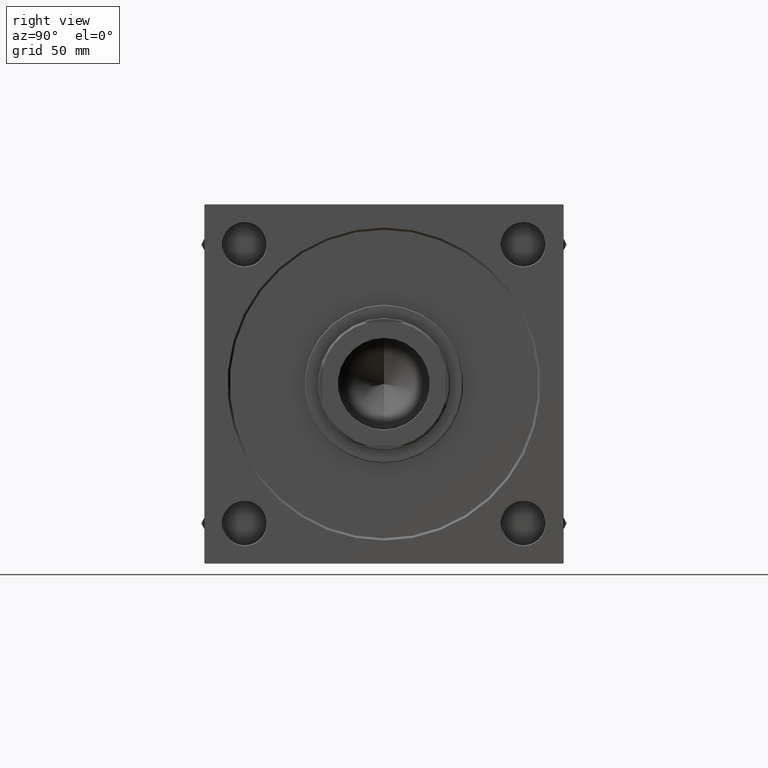
[diagram: clean part render]
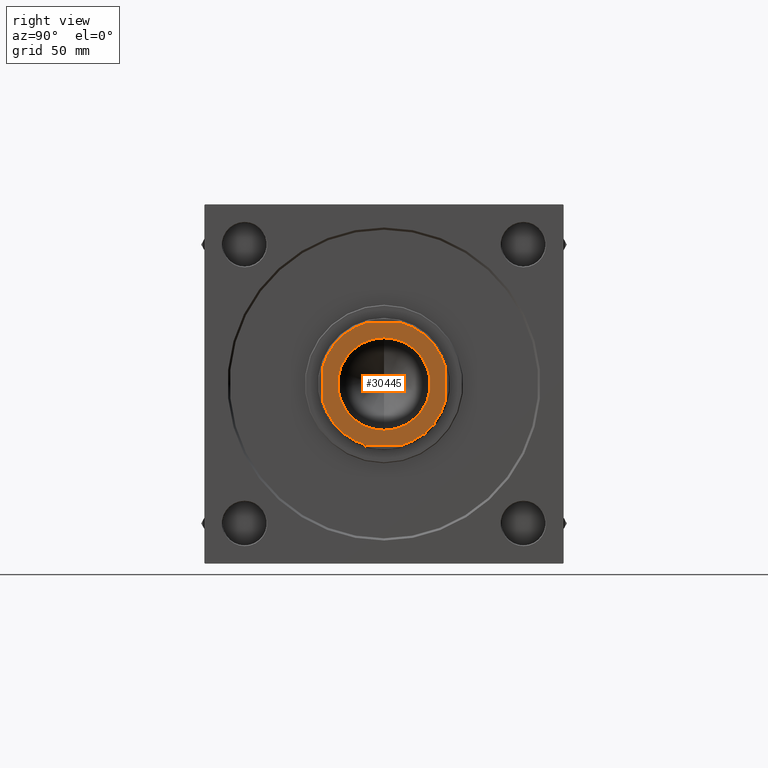
[diagram: same view with one face highlighted and labeled with its STEP entity id]
A machine part, right view. The second image highlights one B-rep face of the part: STEP entity #30445.
In plain terms, the highlighted planar face has unit normal (1, 0, -0).
Its self-contained STEP definition (entity closure, byte-faithful):
#225 = ORIENTED_EDGE ( 'NONE', *, *, #26406, .T. ) ;
#249 = VERTEX_POINT ( 'NONE', #32854 ) ;
#677 = VERTEX_POINT ( 'NONE', #10217 ) ;
#704 = EDGE_CURVE ( 'NONE', #29728, #37407, #50331, .T. ) ;
#1544 = EDGE_LOOP ( 'NONE', ( #225, #20973 ) ) ;
#1638 = CARTESIAN_POINT ( 'NONE',  ( 11.32475165290652974, -42.00000000000000000, 245.0000000000000000 ) ) ;
#1953 = CARTESIAN_POINT ( 'NONE',  ( -11.32475165290625085, -42.00000000000001421, 245.0000000000000000 ) ) ;
#2362 = ORIENTED_EDGE ( 'NONE', *, *, #31434, .T. ) ;
#2437 = ORIENTED_EDGE ( 'NONE', *, *, #19683, .T. ) ;
#2545 = VERTEX_POINT ( 'NONE', #1953 ) ;
#3132 = ORIENTED_EDGE ( 'NONE', *, *, #704, .T. ) ;
#3201 = CARTESIAN_POINT ( 'NONE',  ( 0.000000000000000000, 0.000000000000000000, 245.0000000000000000 ) ) ;
#3217 = DIRECTION ( 'NONE',  ( 1.000000000000000000, 0.000000000000000000, 0.000000000000000000 ) ) ;
#3274 = CARTESIAN_POINT ( 'NONE',  ( -42.00000000000001421, 41.99999999999997868, 245.0000000000000000 ) ) ;
#3547 = DIRECTION ( 'NONE',  ( -0.000000000000000000, 0.000000000000000000, 1.000000000000000000 ) ) ;
#3633 = VECTOR ( 'NONE', #11695, 1000.000000000000000 ) ;
#6940 = DIRECTION ( 'NONE',  ( 1.000000000000000000, 0.000000000000000000, 0.000000000000000000 ) ) ;
#7926 = LINE ( 'NONE', #24071, #26649 ) ;
#8350 = FACE_BOUND ( 'NONE', #1544, .T. ) ;
#8512 = CARTESIAN_POINT ( 'NONE',  ( -42.00000000000000000, -42.00000000000001421, 245.0000000000000000 ) ) ;
#9089 = DIRECTION ( 'NONE',  ( -0.000000000000000000, 0.000000000000000000, 1.000000000000000000 ) ) ;
#10217 = CARTESIAN_POINT ( 'NONE',  ( -42.00000000000000711, 11.32475165290618158, 245.0000000000000000 ) ) ;
#11076 = DIRECTION ( 'NONE',  ( -0.000000000000000000, 0.000000000000000000, 1.000000000000000000 ) ) ;
#11401 = VECTOR ( 'NONE', #23765, 1000.000000000000000 ) ;
#11520 = DIRECTION ( 'NONE',  ( -2.478176394252582127E-16, 1.000000000000000000, -0.000000000000000000 ) ) ;
#11695 = DIRECTION ( 'NONE',  ( -1.000000000000000000, -0.000000000000000000, -0.000000000000000000 ) ) ;
#12158 = CIRCLE ( 'NONE', #35913, 31.55000000000002203 ) ;
#12402 = VERTEX_POINT ( 'NONE', #1638 ) ;
#12404 = CARTESIAN_POINT ( 'NONE',  ( 11.32475165290663277, 41.99999999999997868, 245.0000000000000000 ) ) ;
#13398 = AXIS2_PLACEMENT_3D ( 'NONE', #44223, #9089, #13716 ) ;
#13716 = DIRECTION ( 'NONE',  ( 1.000000000000000000, 0.000000000000000000, 0.000000000000000000 ) ) ;
#18413 = CARTESIAN_POINT ( 'NONE',  ( 31.55000000000002203, 0.000000000000000000, 245.0000000000000000 ) ) ;
#18840 = DIRECTION ( 'NONE',  ( -0.000000000000000000, 0.000000000000000000, 1.000000000000000000 ) ) ;
#19097 = CARTESIAN_POINT ( 'NONE',  ( 0.000000000000000000, 0.000000000000000000, 245.0000000000000000 ) ) ;
#19445 = DIRECTION ( 'NONE',  ( 1.000000000000000000, 0.000000000000000000, 0.000000000000000000 ) ) ;
#19683 = EDGE_CURVE ( 'NONE', #43974, #2545, #21125, .T. ) ;
#19802 = DIRECTION ( 'NONE',  ( 0.000000000000000000, -0.000000000000000000, -1.000000000000000000 ) ) ;
#20639 = FACE_OUTER_BOUND ( 'NONE', #30350, .T. ) ;
#20797 = CARTESIAN_POINT ( 'NONE',  ( 0.000000000000000000, 0.000000000000000000, 245.0000000000000000 ) ) ;
#20973 = ORIENTED_EDGE ( 'NONE', *, *, #46545, .T. ) ;
#21125 = CIRCLE ( 'NONE', #22754, 43.50000000000004263 ) ;
#22435 = DIRECTION ( 'NONE',  ( 0.000000000000000000, -0.000000000000000000, -1.000000000000000000 ) ) ;
#22754 = AXIS2_PLACEMENT_3D ( 'NONE', #3201, #18840, #38315 ) ;
#23246 = LINE ( 'NONE', #3274, #11401 ) ;
#23425 = EDGE_CURVE ( 'NONE', #677, #43974, #23246, .T. ) ;
#23765 = DIRECTION ( 'NONE',  ( 1.652117596168388002E-16, -1.000000000000000000, 0.000000000000000000 ) ) ;
#24071 = CARTESIAN_POINT ( 'NONE',  ( 41.99999999999997868, 41.99999999999997868, 245.0000000000000000 ) ) ;
#25797 = CARTESIAN_POINT ( 'NONE',  ( 41.99999999999998579, 11.32475165290661856, 245.0000000000000000 ) ) ;
#26406 = EDGE_CURVE ( 'NONE', #47108, #47872, #44953, .T. ) ;
#26460 = DIRECTION ( 'NONE',  ( 1.000000000000000000, 0.000000000000000000, 0.000000000000000000 ) ) ;
#26649 = VECTOR ( 'NONE', #11520, 1000.000000000000000 ) ;
#26718 = AXIS2_PLACEMENT_3D ( 'NONE', #50070, #11076, #26460 ) ;
#27882 = AXIS2_PLACEMENT_3D ( 'NONE', #49777, #29762, #6940 ) ;
#29056 = EDGE_CURVE ( 'NONE', #249, #677, #49994, .T. ) ;
#29728 = VERTEX_POINT ( 'NONE', #25797 ) ;
#29762 = DIRECTION ( 'NONE',  ( -0.000000000000000000, 0.000000000000000000, 1.000000000000000000 ) ) ;
#30350 = EDGE_LOOP ( 'NONE', ( #31329, #3132, #2362, #34292, #50067, #2437, #45891, #34067 ) ) ;
#30445 = ADVANCED_FACE ( 'NONE', ( #8350, #20639 ), #32425, .T. ) ;
#31329 = ORIENTED_EDGE ( 'NONE', *, *, #35003, .T. ) ;
#31434 = EDGE_CURVE ( 'NONE', #37407, #249, #50693, .T. ) ;
#32425 = PLANE ( 'NONE',  #13398 ) ;
#32687 = AXIS2_PLACEMENT_3D ( 'NONE', #20797, #19802, #43628 ) ;
#32854 = CARTESIAN_POINT ( 'NONE',  ( -11.32475165290629171, 41.99999999999997868, 245.0000000000000000 ) ) ;
#34067 = ORIENTED_EDGE ( 'NONE', *, *, #41027, .T. ) ;
#34292 = ORIENTED_EDGE ( 'NONE', *, *, #29056, .T. ) ;
#35003 = EDGE_CURVE ( 'NONE', #41559, #29728, #7926, .T. ) ;
#35913 = AXIS2_PLACEMENT_3D ( 'NONE', #19097, #22435, #3217 ) ;
#37407 = VERTEX_POINT ( 'NONE', #12404 ) ;
#38315 = DIRECTION ( 'NONE',  ( 1.000000000000000000, 0.000000000000000000, 0.000000000000000000 ) ) ;
#39019 = VECTOR ( 'NONE', #43887, 1000.000000000000000 ) ;
#40988 = CARTESIAN_POINT ( 'NONE',  ( 41.99999999999999289, -11.32475165290659724, 245.0000000000000000 ) ) ;
#41027 = EDGE_CURVE ( 'NONE', #12402, #41559, #49633, .T. ) ;
#41106 = EDGE_CURVE ( 'NONE', #2545, #12402, #43640, .T. ) ;
#41559 = VERTEX_POINT ( 'NONE', #40988 ) ;
#41608 = CARTESIAN_POINT ( 'NONE',  ( -31.55000000000002203, 3.863760651309902128E-15, 245.0000000000000000 ) ) ;
#43628 = DIRECTION ( 'NONE',  ( 1.000000000000000000, 0.000000000000000000, 0.000000000000000000 ) ) ;
#43640 = LINE ( 'NONE', #8512, #39019 ) ;
#43887 = DIRECTION ( 'NONE',  ( 1.000000000000000000, 0.000000000000000000, 0.000000000000000000 ) ) ;
#43974 = VERTEX_POINT ( 'NONE', #45850 ) ;
#44223 = CARTESIAN_POINT ( 'NONE',  ( 0.000000000000000000, 0.000000000000000000, 245.0000000000000000 ) ) ;
#44953 = CIRCLE ( 'NONE', #32687, 31.55000000000002203 ) ;
#45850 = CARTESIAN_POINT ( 'NONE',  ( -42.00000000000000711, -11.32475165290627039, 245.0000000000000000 ) ) ;
#45891 = ORIENTED_EDGE ( 'NONE', *, *, #41106, .T. ) ;
#46369 = CARTESIAN_POINT ( 'NONE',  ( 0.000000000000000000, 0.000000000000000000, 245.0000000000000000 ) ) ;
#46545 = EDGE_CURVE ( 'NONE', #47872, #47108, #12158, .T. ) ;
#46836 = CARTESIAN_POINT ( 'NONE',  ( -42.00000000000001421, 41.99999999999997868, 245.0000000000000000 ) ) ;
#47028 = AXIS2_PLACEMENT_3D ( 'NONE', #46369, #3547, #19445 ) ;
#47108 = VERTEX_POINT ( 'NONE', #18413 ) ;
#47872 = VERTEX_POINT ( 'NONE', #41608 ) ;
#49633 = CIRCLE ( 'NONE', #26718, 43.50000000000011369 ) ;
#49777 = CARTESIAN_POINT ( 'NONE',  ( 0.000000000000000000, 0.000000000000000000, 245.0000000000000000 ) ) ;
#49994 = CIRCLE ( 'NONE', #27882, 43.50000000000002132 ) ;
#50067 = ORIENTED_EDGE ( 'NONE', *, *, #23425, .T. ) ;
#50070 = CARTESIAN_POINT ( 'NONE',  ( 0.000000000000000000, 0.000000000000000000, 245.0000000000000000 ) ) ;
#50331 = CIRCLE ( 'NONE', #47028, 43.50000000000011369 ) ;
#50693 = LINE ( 'NONE', #46836, #3633 ) ;